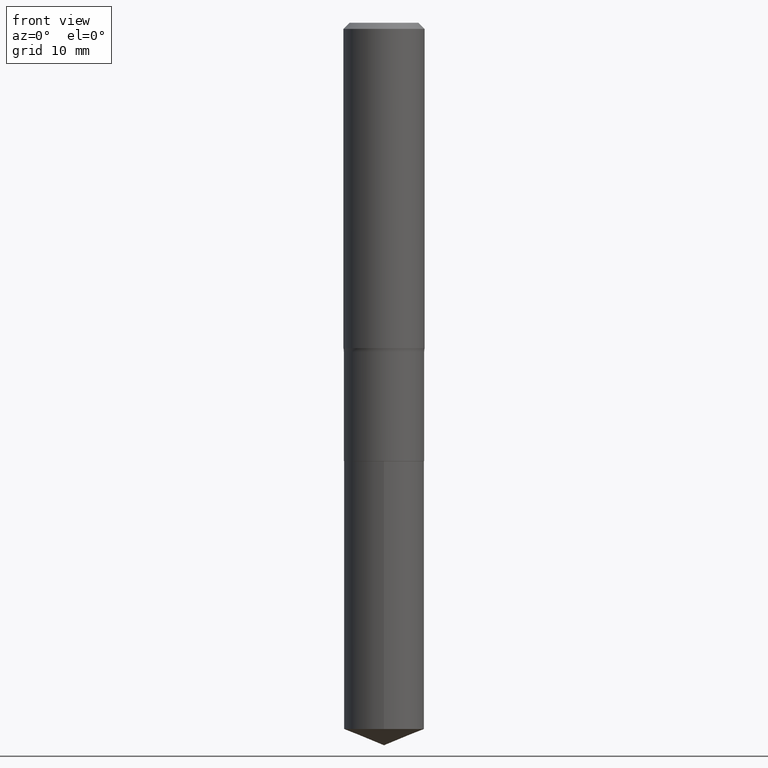
[diagram: clean part render]
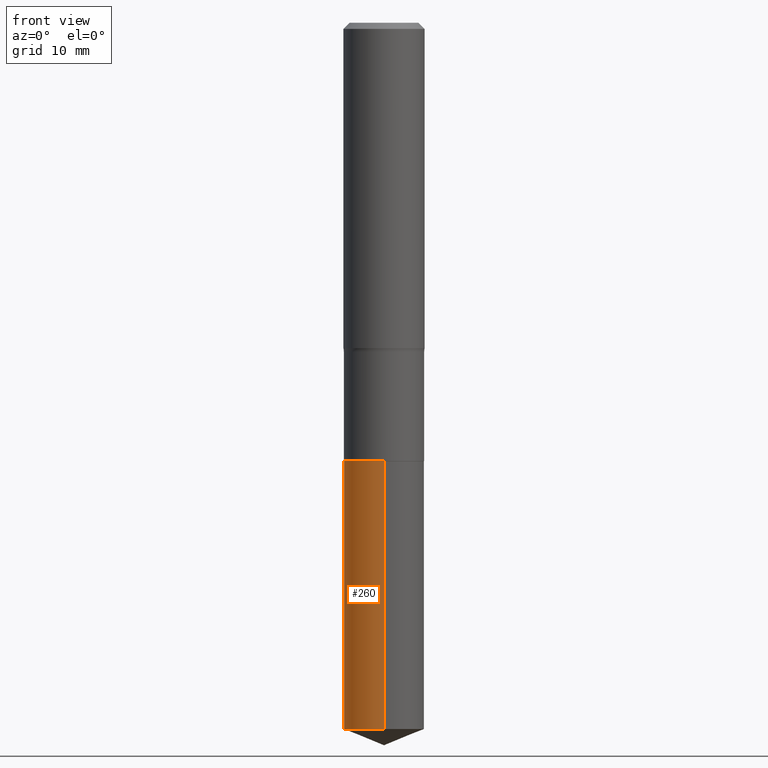
[diagram: same view with one face highlighted and labeled with its STEP entity id]
A machine part, front view. The second image highlights one B-rep face of the part: STEP entity #260.
In plain terms, the highlighted cylindrical surface (partial cylindrical patch) has radius 4.9505 mm, axis along (-0, 0, 1).
Its self-contained STEP definition (entity closure, byte-faithful):
#34 = CARTESIAN_POINT ( 'NONE',  ( -1.360979425881001224E-15, -0.1949000000000074007, -2.125899999999999235 ) ) ;
#46 = EDGE_CURVE ( 'NONE', #60, #227, #147, .T. ) ;
#48 = CARTESIAN_POINT ( 'NONE',  ( 8.375968480027488241E-29, -1.195906903108250715E-14, -3.425155288584728286 ) ) ;
#60 = VERTEX_POINT ( 'NONE', #442 ) ;
#82 = VERTEX_POINT ( 'NONE', #114 ) ;
#86 = FACE_OUTER_BOUND ( 'NONE', #160, .T. ) ;
#112 = EDGE_CURVE ( 'NONE', #227, #278, #374, .T. ) ;
#114 = CARTESIAN_POINT ( 'NONE',  ( -1.360979425880969472E-15, -0.1949000000000119248, -3.425155288584727398 ) ) ;
#145 = CARTESIAN_POINT ( 'NONE',  ( 1.384847791996486861E-15, 0.1948999999999925792, -2.125900000000000567 ) ) ;
#147 = LINE ( 'NONE', #145, #333 ) ;
#160 = EDGE_LOOP ( 'NONE', ( #211, #415, #353, #373 ) ) ;
#174 = AXIS2_PLACEMENT_3D ( 'NONE', #385, #417, #383 ) ;
#193 = LINE ( 'NONE', #459, #315 ) ;
#196 = DIRECTION ( 'NONE',  ( -2.445359563184350382E-29, 3.491637781037997062E-15, 1.000000000000000000 ) ) ;
#203 = AXIS2_PLACEMENT_3D ( 'NONE', #48, #196, #302 ) ;
#211 = ORIENTED_EDGE ( 'NONE', *, *, #46, .F. ) ;
#227 = VERTEX_POINT ( 'NONE', #344 ) ;
#251 = CIRCLE ( 'NONE', #203, 0.1948999999999999899 ) ;
#253 = DIRECTION ( 'NONE',  ( -2.445359563184350382E-29, 3.491637781037997457E-15, 1.000000000000000000 ) ) ;
#254 = DIRECTION ( 'NONE',  ( -2.445359563184350382E-29, 3.491637781037997062E-15, 1.000000000000000000 ) ) ;
#255 = EDGE_CURVE ( 'NONE', #82, #278, #193, .T. ) ;
#257 = AXIS2_PLACEMENT_3D ( 'NONE', #412, #254, #483 ) ;
#260 = ADVANCED_FACE ( 'NONE', ( #86 ), #265, .T. ) ;
#265 = CYLINDRICAL_SURFACE ( 'NONE', #174, 0.1948999999999999899 ) ;
#269 = DIRECTION ( 'NONE',  ( -2.445359563184350382E-29, 3.491637781037997457E-15, 1.000000000000000000 ) ) ;
#278 = VERTEX_POINT ( 'NONE', #34 ) ;
#302 = DIRECTION ( 'NONE',  ( -6.982962677686266711E-15, -1.000000000000000000, 2.803332984776052637E-15 ) ) ;
#315 = VECTOR ( 'NONE', #269, 39.37007874015748143 ) ;
#333 = VECTOR ( 'NONE', #253, 39.37007874015748143 ) ;
#338 = EDGE_CURVE ( 'NONE', #60, #82, #251, .T. ) ;
#344 = CARTESIAN_POINT ( 'NONE',  ( 1.384847791996518810E-15, 0.1948999999999925792, -2.125900000000000567 ) ) ;
#353 = ORIENTED_EDGE ( 'NONE', *, *, #255, .T. ) ;
#373 = ORIENTED_EDGE ( 'NONE', *, *, #112, .F. ) ;
#374 = CIRCLE ( 'NONE', #257, 0.1948999999999999899 ) ;
#383 = DIRECTION ( 'NONE',  ( -6.982962677686266711E-15, -1.000000000000000000, 2.803332984776052637E-15 ) ) ;
#385 = CARTESIAN_POINT ( 'NONE',  ( 5.198822135068982087E-29, -7.422540178246643119E-15, -2.125899999999999679 ) ) ;
#412 = CARTESIAN_POINT ( 'NONE',  ( 5.198822135068982087E-29, -7.422540178246643119E-15, -2.125899999999999679 ) ) ;
#415 = ORIENTED_EDGE ( 'NONE', *, *, #338, .T. ) ;
#417 = DIRECTION ( 'NONE',  ( -2.445359563184350382E-29, 3.491637781037997062E-15, 1.000000000000000000 ) ) ;
#442 = CARTESIAN_POINT ( 'NONE',  ( 1.384847791996518810E-15, 0.1948999999999880550, -3.425155288584728730 ) ) ;
#459 = CARTESIAN_POINT ( 'NONE',  ( -1.360979425881001224E-15, -0.1949000000000074007, -2.125899999999999235 ) ) ;
#483 = DIRECTION ( 'NONE',  ( -6.982962677686266711E-15, -1.000000000000000000, 2.803332984776052637E-15 ) ) ;